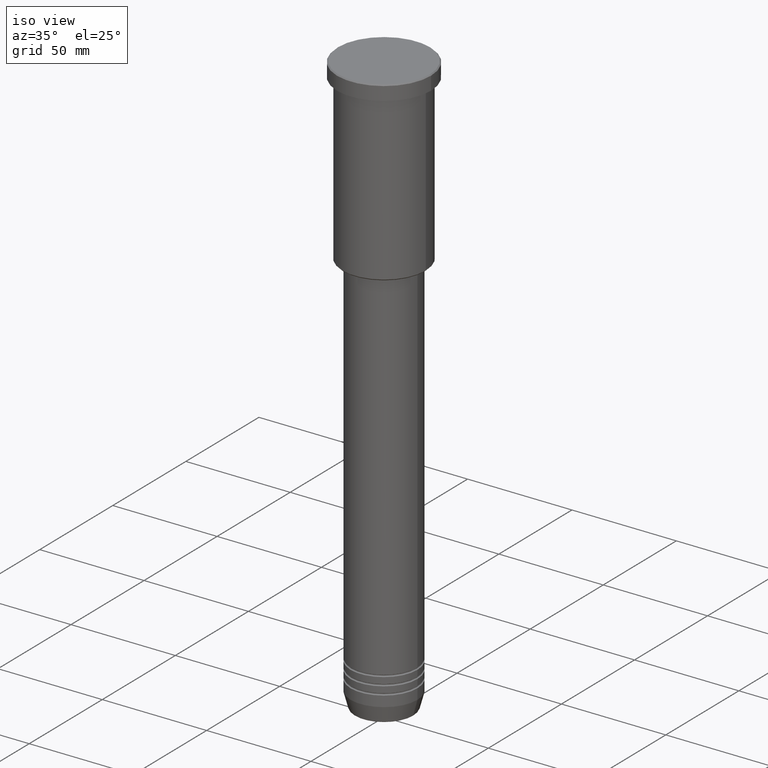
[diagram: clean part render]
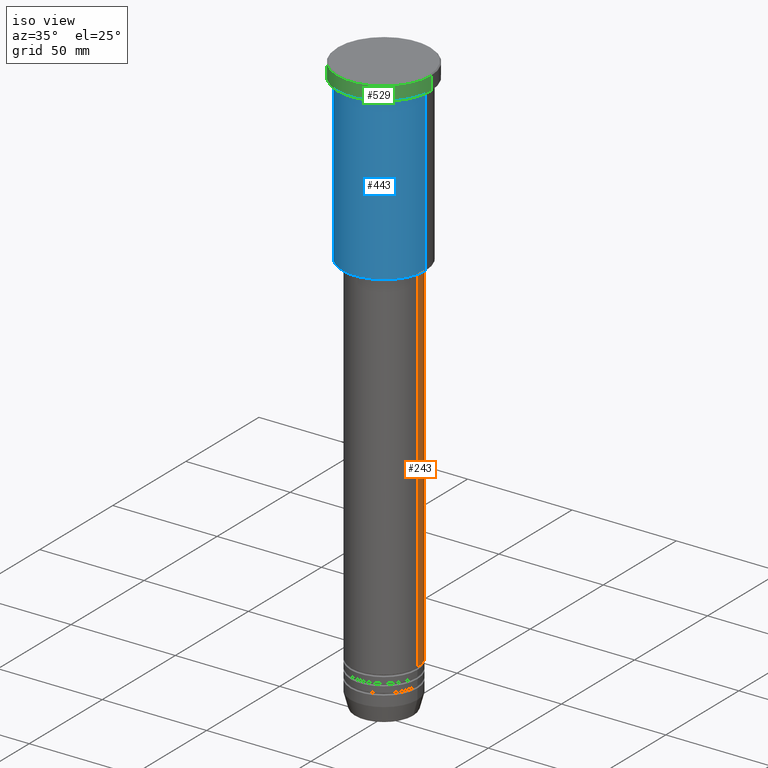
[diagram: same view with three faces highlighted in distinct colors, each labeled with its STEP entity id]
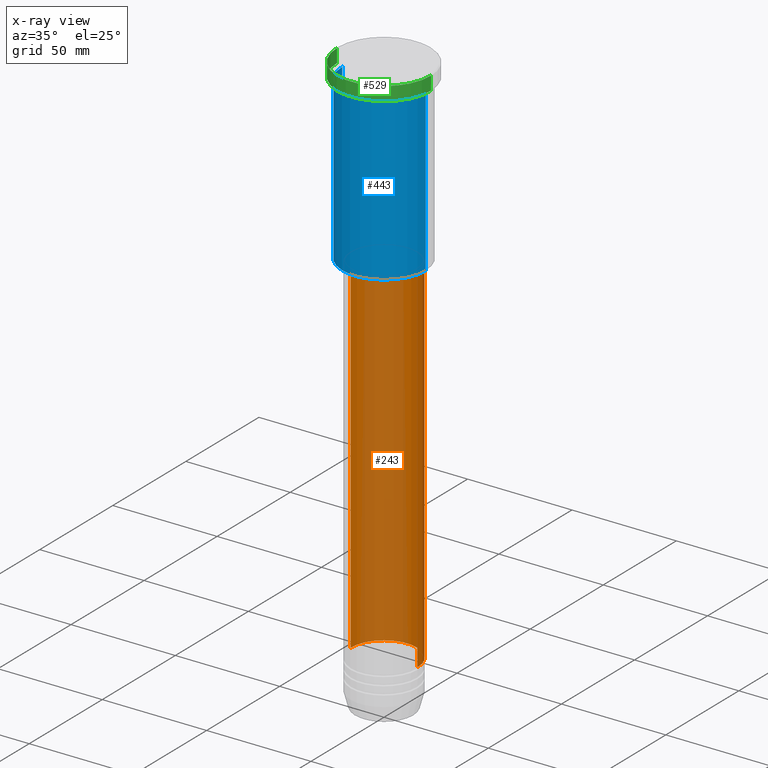
[diagram: x-ray of the same camera — body ghosted, the three highlighted faces saturated]
A machine part, iso view with three faces highlighted in distinct colors.
The next image is the same camera in x-ray (body ghosted, the three faces saturated) — at least one of them is partly hidden behind the body in this view.
Their STEP definitions:

[orange] entity #243 — the highlighted cylindrical surface (partial cylindrical patch) has radius 16 mm, axis along (-0, -0, 1).
#144 = CARTESIAN_POINT ( 'NONE',  ( 16.00000000000000000, 0.000000000000000000, -87.00000000000002842 ) ) ;
#223 = DIRECTION ( 'NONE',  ( -0.000000000000000000, -0.000000000000000000, 1.000000000000000000 ) ) ;
#226 = CYLINDRICAL_SURFACE ( 'NONE', #362, 16.00000000000000000 ) ;
#228 = DIRECTION ( 'NONE',  ( -0.000000000000000000, -0.000000000000000000, 1.000000000000000000 ) ) ;
#243 = ADVANCED_FACE ( 'NONE', ( #1129 ), #226, .T. ) ;
#245 = DIRECTION ( 'NONE',  ( -0.000000000000000000, -0.000000000000000000, 1.000000000000000000 ) ) ;
#249 = VERTEX_POINT ( 'NONE', #510 ) ;
#320 = CARTESIAN_POINT ( 'NONE',  ( 0.000000000000000000, 0.000000000000000000, 0.000000000000000000 ) ) ;
#357 = ORIENTED_EDGE ( 'NONE', *, *, #1015, .T. ) ;
#362 = AXIS2_PLACEMENT_3D ( 'NONE', #320, #245, #522 ) ;
#412 = CARTESIAN_POINT ( 'NONE',  ( 0.000000000000000000, 0.000000000000000000, -87.00000000000002842 ) ) ;
#419 = EDGE_CURVE ( 'NONE', #249, #1156, #1019, .T. ) ;
#426 = AXIS2_PLACEMENT_3D ( 'NONE', #1035, #228, #596 ) ;
#482 = EDGE_LOOP ( 'NONE', ( #357, #1094, #904, #1093 ) ) ;
#510 = CARTESIAN_POINT ( 'NONE',  ( -16.00000000000000000, 1.959434878635765131E-15, -258.5000000000000000 ) ) ;
#522 = DIRECTION ( 'NONE',  ( 1.000000000000000000, 0.000000000000000000, 0.000000000000000000 ) ) ;
#564 = VECTOR ( 'NONE', #843, 1000.000000000000000 ) ;
#576 = DIRECTION ( 'NONE',  ( -0.000000000000000000, -0.000000000000000000, 1.000000000000000000 ) ) ;
#586 = VERTEX_POINT ( 'NONE', #144 ) ;
#596 = DIRECTION ( 'NONE',  ( 1.000000000000000000, 0.000000000000000000, 0.000000000000000000 ) ) ;
#603 = CIRCLE ( 'NONE', #426, 16.00000000000000000 ) ;
#677 = CARTESIAN_POINT ( 'NONE',  ( 16.00000000000000000, 0.000000000000000000, 0.000000000000000000 ) ) ;
#704 = CARTESIAN_POINT ( 'NONE',  ( -16.00000000000000000, 1.959434878635765131E-15, -87.00000000000002842 ) ) ;
#713 = AXIS2_PLACEMENT_3D ( 'NONE', #412, #576, #779 ) ;
#766 = CARTESIAN_POINT ( 'NONE',  ( 16.00000000000000000, 0.000000000000000000, -258.5000000000000000 ) ) ;
#779 = DIRECTION ( 'NONE',  ( 1.000000000000000000, 0.000000000000000000, 0.000000000000000000 ) ) ;
#843 = DIRECTION ( 'NONE',  ( -0.000000000000000000, -0.000000000000000000, 1.000000000000000000 ) ) ;
#849 = VECTOR ( 'NONE', #223, 1000.000000000000000 ) ;
#874 = VERTEX_POINT ( 'NONE', #766 ) ;
#904 = ORIENTED_EDGE ( 'NONE', *, *, #1046, .F. ) ;
#995 = EDGE_CURVE ( 'NONE', #874, #586, #1027, .T. ) ;
#1014 = CARTESIAN_POINT ( 'NONE',  ( -16.00000000000000000, 1.959434878635765131E-15, 0.000000000000000000 ) ) ;
#1015 = EDGE_CURVE ( 'NONE', #874, #249, #603, .T. ) ;
#1019 = LINE ( 'NONE', #1014, #564 ) ;
#1027 = LINE ( 'NONE', #677, #849 ) ;
#1035 = CARTESIAN_POINT ( 'NONE',  ( 0.000000000000000000, 0.000000000000000000, -258.5000000000000000 ) ) ;
#1046 = EDGE_CURVE ( 'NONE', #586, #1156, #1125, .T. ) ;
#1093 = ORIENTED_EDGE ( 'NONE', *, *, #995, .F. ) ;
#1094 = ORIENTED_EDGE ( 'NONE', *, *, #419, .T. ) ;
#1125 = CIRCLE ( 'NONE', #713, 16.00000000000000000 ) ;
#1129 = FACE_OUTER_BOUND ( 'NONE', #482, .T. ) ;
#1156 = VERTEX_POINT ( 'NONE', #704 ) ;

[blue] entity #443 — the highlighted cylindrical surface (partial cylindrical patch) has radius 20 mm, axis along (-0, -0, 1).
#16 = FACE_OUTER_BOUND ( 'NONE', #112, .T. ) ;
#91 = DIRECTION ( 'NONE',  ( -0.000000000000000000, -0.000000000000000000, 1.000000000000000000 ) ) ;
#112 = EDGE_LOOP ( 'NONE', ( #927, #1115, #890, #569 ) ) ;
#116 = VERTEX_POINT ( 'NONE', #799 ) ;
#179 = CARTESIAN_POINT ( 'NONE',  ( 20.00000000000000000, 0.000000000000000000, -7.999999999999994671 ) ) ;
#192 = EDGE_CURVE ( 'NONE', #540, #1064, #1119, .T. ) ;
#218 = DIRECTION ( 'NONE',  ( 1.000000000000000000, 0.000000000000000000, 0.000000000000000000 ) ) ;
#377 = CYLINDRICAL_SURFACE ( 'NONE', #845, 20.00000000000000355 ) ;
#410 = DIRECTION ( 'NONE',  ( -1.000000000000000000, 0.000000000000000000, 0.000000000000000000 ) ) ;
#441 = DIRECTION ( 'NONE',  ( -0.000000000000000000, -0.000000000000000000, 1.000000000000000000 ) ) ;
#443 = ADVANCED_FACE ( 'NONE', ( #16 ), #377, .T. ) ;
#517 = CARTESIAN_POINT ( 'NONE',  ( 20.00000000000000355, 0.000000000000000000, 0.000000000000000000 ) ) ;
#540 = VERTEX_POINT ( 'NONE', #1048 ) ;
#547 = VECTOR ( 'NONE', #91, 1000.000000000000000 ) ;
#569 = ORIENTED_EDGE ( 'NONE', *, *, #872, .F. ) ;
#570 = LINE ( 'NONE', #999, #547 ) ;
#722 = EDGE_CURVE ( 'NONE', #540, #116, #570, .T. ) ;
#729 = AXIS2_PLACEMENT_3D ( 'NONE', #797, #1149, #410 ) ;
#746 = CARTESIAN_POINT ( 'NONE',  ( 0.000000000000000000, 0.000000000000000000, 0.000000000000000000 ) ) ;
#791 = VECTOR ( 'NONE', #441, 1000.000000000000000 ) ;
#797 = CARTESIAN_POINT ( 'NONE',  ( 0.000000000000000000, 0.000000000000000000, -85.49999999999994316 ) ) ;
#799 = CARTESIAN_POINT ( 'NONE',  ( -20.00000000000000000, 2.449293598294706513E-15, -7.999999999999994671 ) ) ;
#800 = VERTEX_POINT ( 'NONE', #179 ) ;
#845 = AXIS2_PLACEMENT_3D ( 'NONE', #746, #859, #925 ) ;
#859 = DIRECTION ( 'NONE',  ( -0.000000000000000000, -0.000000000000000000, 1.000000000000000000 ) ) ;
#861 = AXIS2_PLACEMENT_3D ( 'NONE', #1127, #1032, #218 ) ;
#872 = EDGE_CURVE ( 'NONE', #116, #800, #954, .T. ) ;
#890 = ORIENTED_EDGE ( 'NONE', *, *, #1114, .T. ) ;
#925 = DIRECTION ( 'NONE',  ( 1.000000000000000000, 0.000000000000000000, 0.000000000000000000 ) ) ;
#927 = ORIENTED_EDGE ( 'NONE', *, *, #722, .F. ) ;
#954 = CIRCLE ( 'NONE', #861, 20.00000000000000000 ) ;
#968 = LINE ( 'NONE', #517, #791 ) ;
#999 = CARTESIAN_POINT ( 'NONE',  ( -20.00000000000000355, 2.449293598294706907E-15, 0.000000000000000000 ) ) ;
#1032 = DIRECTION ( 'NONE',  ( -0.000000000000000000, -0.000000000000000000, 1.000000000000000000 ) ) ;
#1048 = CARTESIAN_POINT ( 'NONE',  ( -20.00000000000000355, 2.449293598294706907E-15, -85.49999999999994316 ) ) ;
#1064 = VERTEX_POINT ( 'NONE', #1151 ) ;
#1114 = EDGE_CURVE ( 'NONE', #1064, #800, #968, .T. ) ;
#1115 = ORIENTED_EDGE ( 'NONE', *, *, #192, .T. ) ;
#1119 = CIRCLE ( 'NONE', #729, 20.00000000000000355 ) ;
#1127 = CARTESIAN_POINT ( 'NONE',  ( 0.000000000000000000, 0.000000000000000000, -7.999999999999994671 ) ) ;
#1149 = DIRECTION ( 'NONE',  ( -0.000000000000000000, -0.000000000000000000, 1.000000000000000000 ) ) ;
#1151 = CARTESIAN_POINT ( 'NONE',  ( 20.00000000000000355, 0.000000000000000000, -85.49999999999994316 ) ) ;

[green] entity #529 — the highlighted cylindrical surface (partial cylindrical patch) has radius 22.5 mm, axis along (-0, -0, 1).
#8 = VERTEX_POINT ( 'NONE', #727 ) ;
#31 = DIRECTION ( 'NONE',  ( -0.000000000000000000, -0.000000000000000000, 1.000000000000000000 ) ) ;
#44 = CARTESIAN_POINT ( 'NONE',  ( 0.000000000000000000, 0.000000000000000000, 0.000000000000000000 ) ) ;
#120 = EDGE_CURVE ( 'NONE', #379, #393, #648, .T. ) ;
#172 = VECTOR ( 'NONE', #728, 1000.000000000000000 ) ;
#202 = VERTEX_POINT ( 'NONE', #792 ) ;
#268 = CARTESIAN_POINT ( 'NONE',  ( 22.50000000000000000, 0.000000000000000000, -0.4999999999999379940 ) ) ;
#302 = ORIENTED_EDGE ( 'NONE', *, *, #385, .T. ) ;
#303 = DIRECTION ( 'NONE',  ( 0.000000000000000000, 0.000000000000000000, -1.000000000000000000 ) ) ;
#330 = ORIENTED_EDGE ( 'NONE', *, *, #977, .F. ) ;
#374 = ORIENTED_EDGE ( 'NONE', *, *, #1118, .T. ) ;
#379 = VERTEX_POINT ( 'NONE', #268 ) ;
#385 = EDGE_CURVE ( 'NONE', #202, #379, #637, .T. ) ;
#393 = VERTEX_POINT ( 'NONE', #409 ) ;
#404 = DIRECTION ( 'NONE',  ( 1.000000000000000000, 0.000000000000000000, 0.000000000000000000 ) ) ;
#409 = CARTESIAN_POINT ( 'NONE',  ( -22.50000000000000000, 2.755455298081544778E-15, -0.4999999999999379940 ) ) ;
#420 = AXIS2_PLACEMENT_3D ( 'NONE', #1150, #303, #404 ) ;
#490 = LINE ( 'NONE', #852, #1140 ) ;
#508 = CYLINDRICAL_SURFACE ( 'NONE', #788, 22.50000000000000000 ) ;
#529 = ADVANCED_FACE ( 'NONE', ( #597 ), #508, .T. ) ;
#597 = FACE_OUTER_BOUND ( 'NONE', #819, .T. ) ;
#606 = DIRECTION ( 'NONE',  ( 1.000000000000000000, 0.000000000000000000, 0.000000000000000000 ) ) ;
#623 = DIRECTION ( 'NONE',  ( -0.000000000000000000, -0.000000000000000000, 1.000000000000000000 ) ) ;
#624 = CIRCLE ( 'NONE', #1085, 22.50000000000000000 ) ;
#637 = LINE ( 'NONE', #990, #172 ) ;
#648 = CIRCLE ( 'NONE', #420, 22.50000000000000000 ) ;
#727 = CARTESIAN_POINT ( 'NONE',  ( -22.50000000000000000, 2.755455298081544778E-15, -6.999999999999995559 ) ) ;
#728 = DIRECTION ( 'NONE',  ( -0.000000000000000000, -0.000000000000000000, 1.000000000000000000 ) ) ;
#733 = ORIENTED_EDGE ( 'NONE', *, *, #120, .T. ) ;
#788 = AXIS2_PLACEMENT_3D ( 'NONE', #44, #795, #1148 ) ;
#792 = CARTESIAN_POINT ( 'NONE',  ( 22.50000000000000000, 0.000000000000000000, -6.999999999999995559 ) ) ;
#795 = DIRECTION ( 'NONE',  ( -0.000000000000000000, -0.000000000000000000, 1.000000000000000000 ) ) ;
#819 = EDGE_LOOP ( 'NONE', ( #330, #374, #302, #733 ) ) ;
#852 = CARTESIAN_POINT ( 'NONE',  ( -22.50000000000000000, 2.755455298081544778E-15, 0.000000000000000000 ) ) ;
#875 = CARTESIAN_POINT ( 'NONE',  ( 0.000000000000000000, 0.000000000000000000, -6.999999999999995559 ) ) ;
#977 = EDGE_CURVE ( 'NONE', #8, #393, #490, .T. ) ;
#990 = CARTESIAN_POINT ( 'NONE',  ( 22.50000000000000000, 0.000000000000000000, 0.000000000000000000 ) ) ;
#1085 = AXIS2_PLACEMENT_3D ( 'NONE', #875, #623, #606 ) ;
#1118 = EDGE_CURVE ( 'NONE', #8, #202, #624, .T. ) ;
#1140 = VECTOR ( 'NONE', #31, 1000.000000000000000 ) ;
#1148 = DIRECTION ( 'NONE',  ( 1.000000000000000000, 0.000000000000000000, 0.000000000000000000 ) ) ;
#1150 = CARTESIAN_POINT ( 'NONE',  ( 0.000000000000000000, 0.000000000000000000, -0.4999999999999379940 ) ) ;